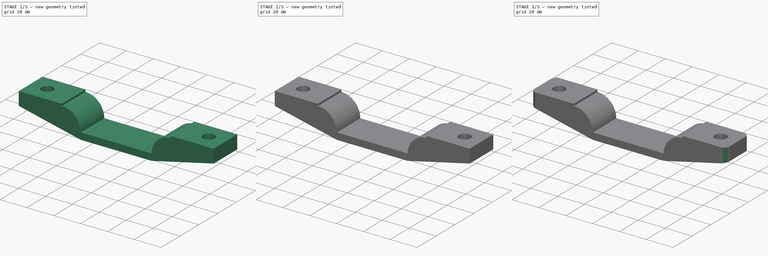
[diagram: build sequence overview — one tinted view per stage of 3, left to right]
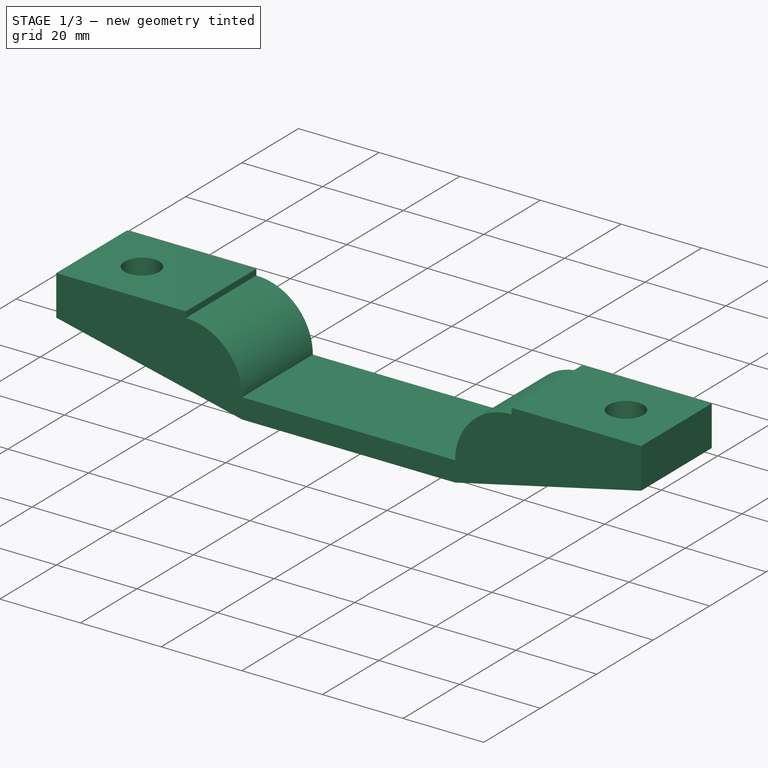
[diagram: stage 1 of 3 — iso view after this stage's code; geometry added in this stage tinted green]
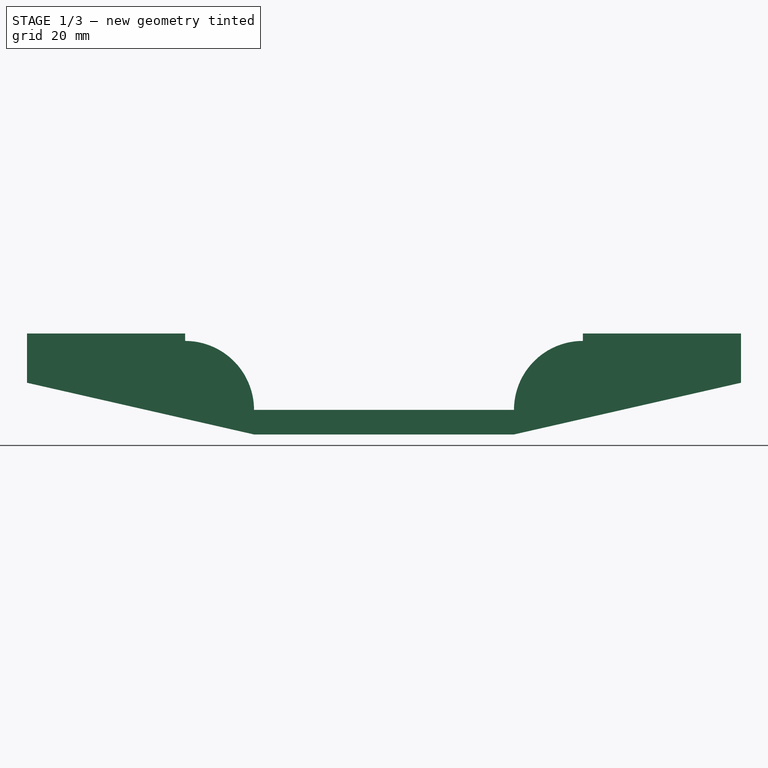
[diagram: stage 1 of 3 — front view after this stage's code; geometry added in this stage tinted green]
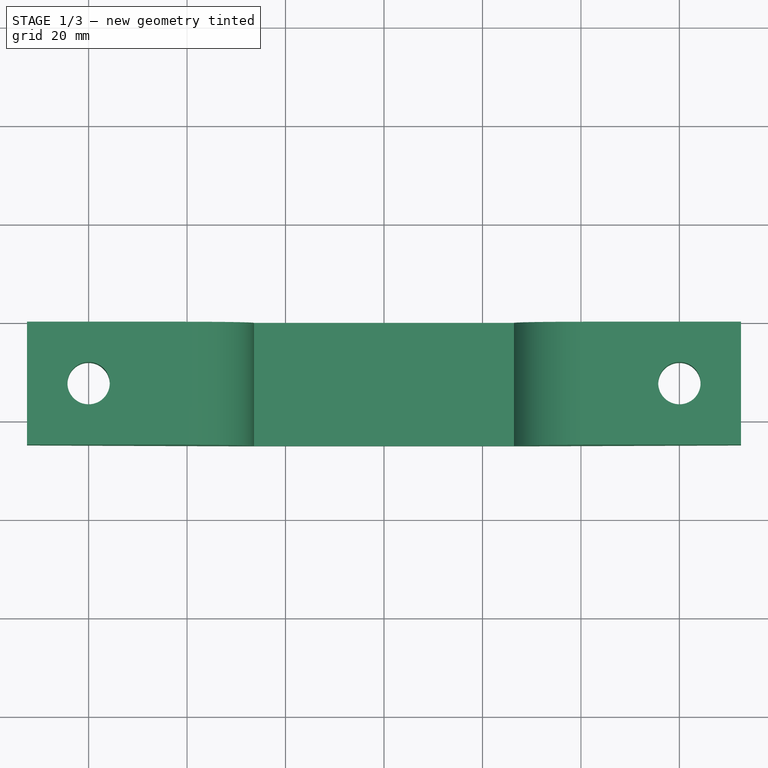
[diagram: stage 1 of 3 — top view after this stage's code; geometry added in this stage tinted green]
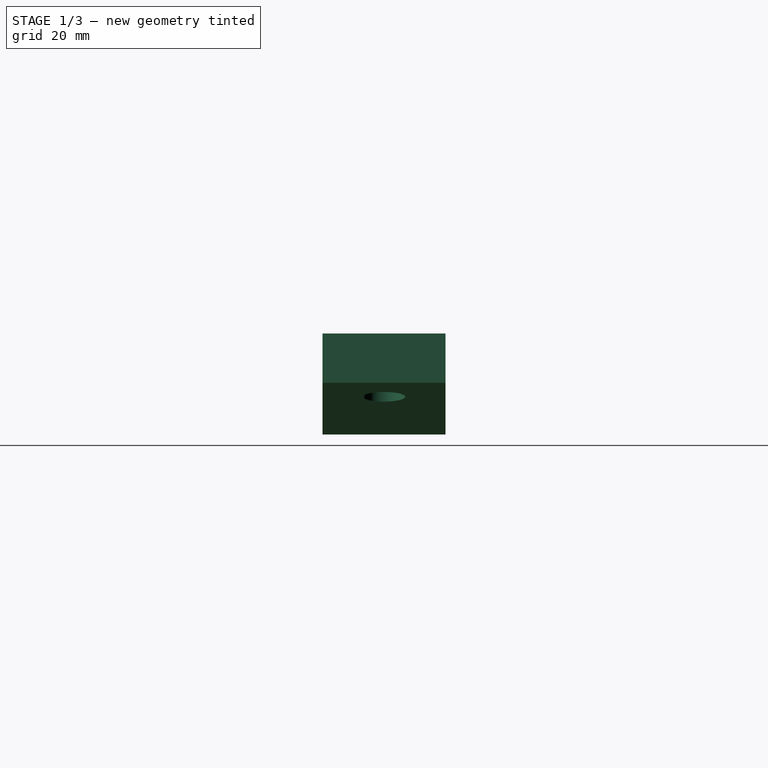
[diagram: stage 1 of 3 — right view after this stage's code; geometry added in this stage tinted green]
FCSTD DOCUMENT  (FreeCAD 1.0R39109 (Git))
Label: surge_motor_mount_bottom
License: All rights reserved
LicenseURL: https://en.wikipedia.org/wiki/All_rights_reserved
objects: Sketcher::SketchObject×3, PartDesign::Pocket×2, PartDesign::Fillet×2, PartDesign::Pad×1, PartDesign::Body×1
note: 22 computed .brp shape members not serialized (recipe doc carries the construction recipe); baked Part::Feature solids carry a one-line shape summary decoded from their .brp

FEATURE [Sketcher::SketchObject] Sketch
  ArcFitTolerance = 1e-06
  AttachmentSupport = -> [XZ_Plane]
  FullyConstrained = true
  MakeInternals = false
  MapMode = 5
  Placement = pos=(0,0,0) rot=(1,0,0;1.5708rad)
  sketch-geometry (30):
    g0: LineSegment [constr] StartX=-80 StartY=20 StartZ=0 EndX=-80 EndY=-20 EndZ=0
    g1: LineSegment [constr] StartX=-80 StartY=-20 StartZ=0 EndX=-40 EndY=-20 EndZ=0
    g2: LineSegment [constr] StartX=-40 StartY=-20 StartZ=0 EndX=-40 EndY=20 EndZ=0
    g3: LineSegment [constr] StartX=-40 StartY=20 StartZ=0 EndX=-80 EndY=20 EndZ=0
    g4: LineSegment [constr] StartX=40 StartY=20 StartZ=0 EndX=40 EndY=-20 EndZ=0
    g5: LineSegment [constr] StartX=40 StartY=-20 StartZ=0 EndX=80 EndY=-20 EndZ=0
    g6: LineSegment [constr] StartX=80 StartY=-20 StartZ=0 EndX=80 EndY=20 EndZ=0
    g7: LineSegment [constr] StartX=80 StartY=20 StartZ=0 EndX=40 EndY=20 EndZ=0
    g8: LineSegment [constr] StartX=-40 StartY=-20 StartZ=0 EndX=0 EndY=0 EndZ=0
    g9: LineSegment [constr] StartX=0 StartY=0 StartZ=0 EndX=40 EndY=-20 EndZ=0
    g10: LineSegment [constr] StartX=-40 StartY=44.5 StartZ=0 EndX=-40 EndY=-35.5 EndZ=0
    g11: LineSegment [constr] StartX=-40 StartY=-35.5 StartZ=0 EndX=40 EndY=-35.5 EndZ=0
    g12: LineSegment [constr] StartX=40 StartY=-35.5 StartZ=0 EndX=40 EndY=44.5 EndZ=0
    g13: LineSegment [constr] StartX=40 StartY=44.5 StartZ=0 EndX=-40 EndY=44.5 EndZ=0
    g14: LineSegment StartX=40.4 StartY=-20.4 StartZ=0 EndX=72.5 EndY=-20.4 EndZ=0
    g15: LineSegment StartX=72.5 StartY=-20.4 StartZ=0 EndX=72.5 EndY=-30.4 EndZ=0
    g16: LineSegment StartX=-72.5 StartY=-30.4 StartZ=0 EndX=-72.5 EndY=-20.4 EndZ=0
    g17: LineSegment StartX=-72.5 StartY=-20.4 StartZ=0 EndX=-40.4 EndY=-20.4 EndZ=0
    g18: ArcOfCircle [constr] CenterX=-40 CenterY=-35.5 CenterZ=0 NormalX=0 NormalY=0 NormalZ=1 AngleXU=0 Radius=14 StartAngle=3e-16 EndAngle=1.5708
    g19: ArcOfCircle [constr] CenterX=-40 CenterY=44.5 CenterZ=0 NormalX=0 NormalY=0 NormalZ=1 AngleXU=0 Radius=14 StartAngle=4.71239 EndAngle=6.28319
    g20: ArcOfCircle [constr] CenterX=40 CenterY=-35.5 CenterZ=0 NormalX=0 NormalY=0 NormalZ=1 AngleXU=0 Radius=14 StartAngle=1.5708 EndAngle=3.14159
    g21: ArcOfCircle [constr] CenterX=40 CenterY=44.5 CenterZ=0 NormalX=0 NormalY=0 NormalZ=1 AngleXU=0 Radius=14 StartAngle=3.14159 EndAngle=4.71239
    g22: ArcOfCircle CenterX=-40.4 CenterY=-35.9 CenterZ=0 NormalX=0 NormalY=0 NormalZ=1 AngleXU=0 Radius=14 StartAngle=2e-16 EndAngle=1.5708
    g23: ArcOfCircle CenterX=40.4 CenterY=-35.9 CenterZ=0 NormalX=0 NormalY=0 NormalZ=1 AngleXU=0 Radius=14 StartAngle=1.5708 EndAngle=3.14159
    g24: LineSegment StartX=-40.4 StartY=-21.9 StartZ=0 EndX=-40.4 EndY=-20.4 EndZ=0
    g25: LineSegment StartX=-26.4 StartY=-35.9 StartZ=0 EndX=26.4 EndY=-35.9 EndZ=0
    g26: LineSegment StartX=40.4 StartY=-21.9 StartZ=0 EndX=40.4 EndY=-20.4 EndZ=0
    g27: LineSegment StartX=-72.5 StartY=-30.4 StartZ=0 EndX=-26.4 EndY=-40.9 EndZ=0
    g28: LineSegment StartX=-26.4 StartY=-40.9 StartZ=0 EndX=26.4 EndY=-40.9 EndZ=0
    g29: LineSegment StartX=26.4 StartY=-40.9 StartZ=0 EndX=72.5 EndY=-30.4 EndZ=0
  constraints (94):
    c: Coincident(g0,g1)
    c: Coincident(g1,g2)
    c: Coincident(g2,g3)
    c: Coincident(g3,g0)
    c: Vertical(g0)
    c: Vertical(g2)
    c: Horizontal(g1)
    c: Horizontal(g3)
    c: Coincident(g4,g5)
    c: Coincident(g5,g6)
    c: Coincident(g6,g7)
    c: Coincident(g7,g4)
    c: Vertical(g4)
    c: Vertical(g6)
    c: Horizontal(g5)
    c: Horizontal(g7)
    c: Equal(g3,g2)
    c: Equal(g2,g4)
    c: Equal(g4,g7)
    c: DistanceY(g0,g0) = 40
    c: DistanceX(g2,g4) = 80
    c: DistanceY(g2,g4) = 0
    c: Coincident(g8,g1)
    c: Coincident(g8,g-1)
    c: Coincident(g9,g8)
    c: Coincident(g9,g4)
    c: Equal(g9,g8)
    c: Coincident(g10,g11)
    c: Coincident(g11,g12)
    c: Coincident(g12,g13)
    c: Coincident(g13,g10)
    c: Vertical(g10)
    c: Vertical(g12)
    c: Horizontal(g11)
    c: Horizontal(g13)
    c: PointOnObject(g2,g10)
    c: PointOnObject(g4,g12)
    c: Equal(g13,g10)
    c: DistanceY(g2,g10) = 24.5
    c: DistanceY(g2) = 20
    c: Horizontal(g14)
    c: Coincident(g14,g15)
    c: Vertical(g15)
    c: Vertical(g16)
    c: Coincident(g16,g17)
    c: Horizontal(g17)
    c: DistanceY(g17,g1) = 0.4
    c: Equal(g16,g15)
    c: DistanceX(g0,g16) = 7.5
    c: DistanceY(g16,g16) = 10
    c: Coincident(g18,g10)
    c: PointOnObject(g18,g10)
    c: PointOnObject(g18,g11)
    c: Diameter(g18) = 28
    c: Coincident(g19,g10)
    c: PointOnObject(g19,g13)
    c: PointOnObject(g19,g10)
    c: Coincident(g20,g11)
    c: PointOnObject(g20,g11)
    c: PointOnObject(g20,g12)
    c: Coincident(g21,g12)
    c: PointOnObject(g21,g13)
    c: PointOnObject(g21,g12)
    c: Equal(g18,g20)
    c: Equal(g20,g21)
    c: Equal(g21,g19)
    c: DistanceX(g17,g1) = 0.4
    c: Coincident(g24,g22)
    c: Coincident(g24,g17)
    c: Vertical(g24)
    c: DistanceY(g22,g18) = 0.4
    c: Coincident(g25,g22)
    c: Coincident(g25,g23)
    c: Horizontal(g25)
    c: DistanceY(g22,g18) = 0.4
    c: Perpendicular(g22,g24)
    c: Perpendicular(g22,g25)
    c: Perpendicular(g23,g25)
    c: Coincident(g26,g23)
    c: Coincident(g26,g14)
    c: Vertical(g26)
    c: Equal(g17,g14)
    c: Equal(g24,g26)
    c: Coincident(g16,g27)
    c: Coincident(g27,g28)
    c: Horizontal(g28)
    c: Coincident(g28,g29)
    c: Coincident(g29,g15)
    c: DistanceX(g27,g22) = 0
    c: DistanceY(g27,g22) = 5
    c: DistanceX(g28,g23) = 0
    c: Equal(g29,g27)
    c: DistanceX(g4,g14) = 0.4
    c: DistanceY(g14,g4) = 0.4
FEATURE [PartDesign::Pad] Pad
  Direction = (0,-1,2e-16)
  Length = 25
  Length2 = 10
  Placement = pos=(0,0,0) rot=(1,0,0;1.5708rad)
  Profile = -> Sketch
  ReferenceAxis = -> Sketch [N_Axis]
  Refine = true
  Suppressed = false
  Type = 0
FEATURE [Sketcher::SketchObject] Sketch001
  ArcFitTolerance = 1e-06
  AttachmentSupport = -> [Pad]
  FullyConstrained = true
  MakeInternals = false
  MapMode = 5
  Placement = pos=(0,-4.5e-15,-20.4) rot=(0,0,1;3.14159rad)
  sketch-geometry (14):
    g0: LineSegment [constr] StartX=-72.5 StartY=0 StartZ=0 EndX=-47.5 EndY=0 EndZ=0
    g1: LineSegment [constr] StartX=-47.5 StartY=0 StartZ=0 EndX=-47.5 EndY=25 EndZ=0
    g2: LineSegment [constr] StartX=-47.5 StartY=25 StartZ=0 EndX=-72.5 EndY=25 EndZ=0
    g3: LineSegment [constr] StartX=-72.5 StartY=25 StartZ=0 EndX=-72.5 EndY=0 EndZ=0
    g4: LineSegment [constr] StartX=72.5 StartY=0 StartZ=0 EndX=72.5 EndY=25 EndZ=0
    g5: LineSegment [constr] StartX=72.5 StartY=25 StartZ=0 EndX=47.5 EndY=25 EndZ=0
    g6: LineSegment [constr] StartX=47.5 StartY=25 StartZ=0 EndX=47.5 EndY=0 EndZ=0
    g7: LineSegment [constr] StartX=47.5 StartY=0 StartZ=0 EndX=72.5 EndY=0 EndZ=0
    g8: LineSegment [constr] StartX=-72.5 StartY=25 StartZ=0 EndX=-47.5 EndY=0 EndZ=0
    g9: LineSegment [constr] StartX=-72.5 StartY=0 StartZ=0 EndX=-47.5 EndY=25 EndZ=0
    g10: LineSegment [constr] StartX=47.5 StartY=25 StartZ=0 EndX=72.5 EndY=0 EndZ=0
    g11: LineSegment [constr] StartX=47.5 StartY=0 StartZ=0 EndX=72.5 EndY=25 EndZ=0
    g12: Circle CenterX=-60 CenterY=12.5 CenterZ=0 NormalX=0 NormalY=0 NormalZ=1 AngleXU=0 Radius=4.3
    g13: Circle CenterX=60 CenterY=12.5 CenterZ=0 NormalX=0 NormalY=0 NormalZ=1 AngleXU=0 Radius=4.3
  constraints (36):
    c: Coincident(g0,g1)
    c: Coincident(g1,g2)
    c: Coincident(g2,g3)
    c: Coincident(g3,g0)
    c: Horizontal(g0)
    c: Horizontal(g2)
    c: Vertical(g1)
    c: Vertical(g3)
    c: Distance(g1,g3) = 25
    c: Distance(g0,g2) = 25
    c: PointOnObject(g0,g-1)
    c: DistanceX(g0) = -47.5
    c: Coincident(g4,g5)
    c: Coincident(g5,g6)
    c: Coincident(g6,g7)
    c: Coincident(g7,g4)
    c: Vertical(g4)
    c: Vertical(g6)
    c: Horizontal(g5)
    c: Horizontal(g7)
    c: PointOnObject(g4,g-1)
    c: Equal(g6,g5)
    c: Equal(g5,g1)
    c: DistanceX(g6) = 47.5
    c: Coincident(g8,g2)
    c: Coincident(g8,g0)
    c: Coincident(g9,g0)
    c: Coincident(g9,g1)
    c: Coincident(g10,g5)
    c: Coincident(g10,g4)
    c: Coincident(g11,g6)
    c: Coincident(g11,g4)
    c: Diameter(g12) = 8.6
    c: Symmetric(g8,g8,g12)
    c: Symmetric(g11,g11,g13)
    c: Equal(g13,g12)
FEATURE [PartDesign::Pocket] Pocket
  BaseFeature = -> Pad
  Direction = (0,0,-1)
  Length = 5
  Length2 = 5
  Placement = pos=(0,0,0) rot=(1,0,0;1.5708rad)
  Profile = -> Sketch001
  ReferenceAxis = -> Sketch001 [N_Axis]
  Refine = true
  Suppressed = false
  Type = 1
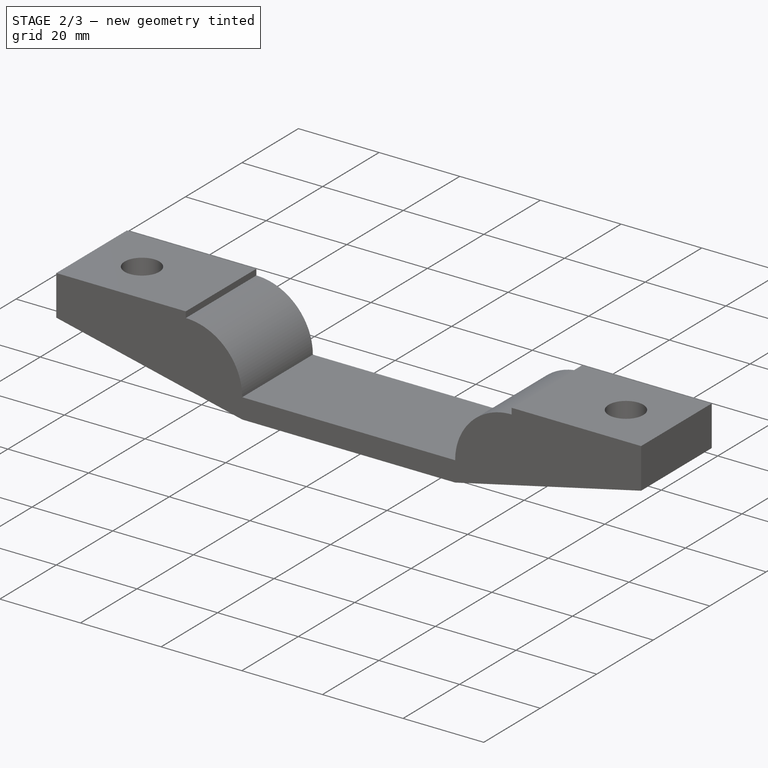
[diagram: stage 2 of 3 — iso view after this stage's code; geometry added in this stage tinted green]
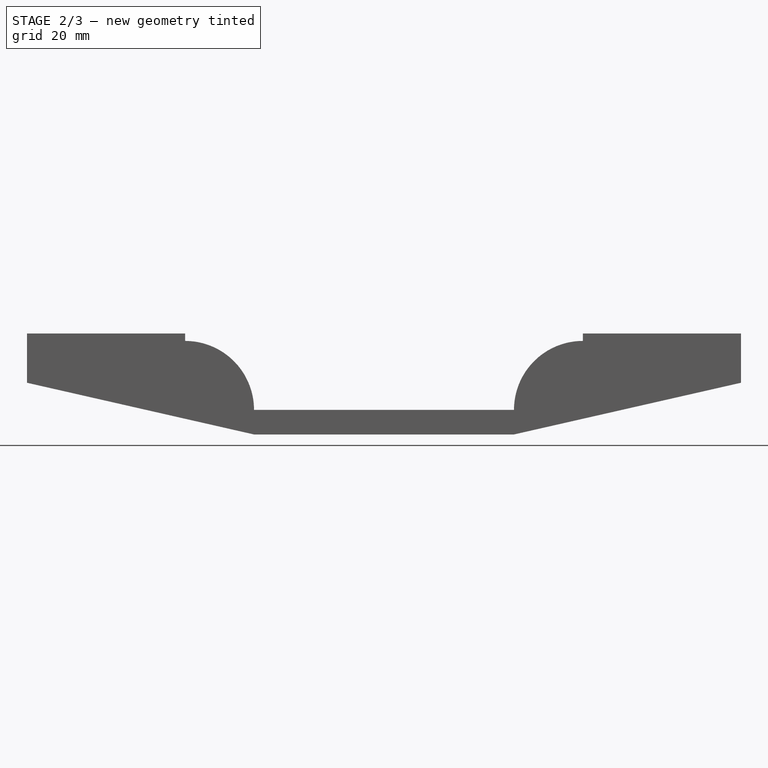
[diagram: stage 2 of 3 — front view after this stage's code; geometry added in this stage tinted green]
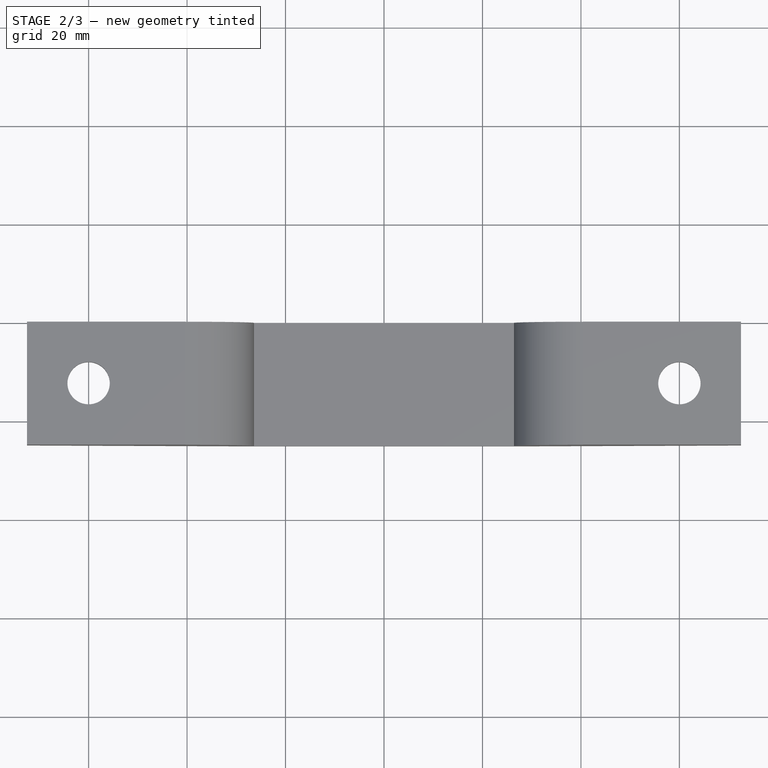
[diagram: stage 2 of 3 — top view after this stage's code; geometry added in this stage tinted green]
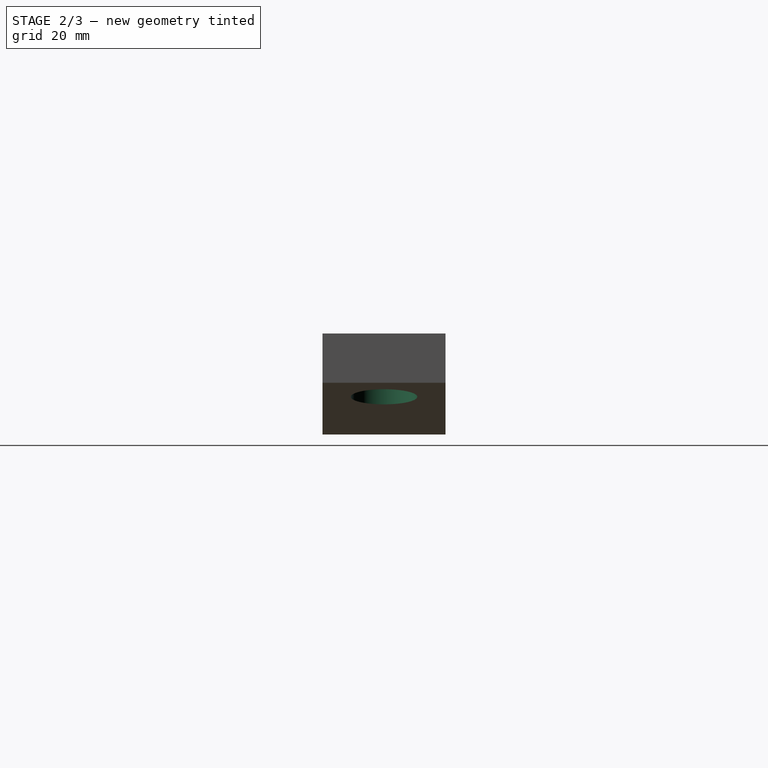
[diagram: stage 2 of 3 — right view after this stage's code; geometry added in this stage tinted green]
FEATURE [Sketcher::SketchObject] Sketch002
  ArcFitTolerance = 1e-06
  AttachmentOffset = pos=(0,0,-5) rot=(0,0,1;0rad)
  AttachmentSupport = -> [Pocket]
  FullyConstrained = true
  MakeInternals = false
  MapMode = 5
  Placement = pos=(0,-4.5e-15,-25.4) rot=(0,0,1;3.14159rad)
  expr: Constraints[11] = Sketch001.Constraints[11]
  expr: Constraints[23] = Sketch001.Constraints[23]
  expr: Constraints[32] = Sketch001.Constraints[32]
  expr: Constraints[8] = Sketch001.Constraints[8]
  expr: Constraints[9] = Sketch001.Constraints[9]
  sketch-geometry (16):
    g0: LineSegment [constr] StartX=-72.5 StartY=0 StartZ=0 EndX=-47.5 EndY=0 EndZ=0
    g1: LineSegment [constr] StartX=-47.5 StartY=0 StartZ=0 EndX=-47.5 EndY=25 EndZ=0
    g2: LineSegment [constr] StartX=-47.5 StartY=25 StartZ=0 EndX=-72.5 EndY=25 EndZ=0
    g3: LineSegment [constr] StartX=-72.5 StartY=25 StartZ=0 EndX=-72.5 EndY=0 EndZ=0
    g4: LineSegment [constr] StartX=72.5 StartY=0 StartZ=0 EndX=72.5 EndY=25 EndZ=0
    g5: LineSegment [constr] StartX=72.5 StartY=25 StartZ=0 EndX=47.5 EndY=25 EndZ=0
    g6: LineSegment [constr] StartX=47.5 StartY=25 StartZ=0 EndX=47.5 EndY=0 EndZ=0
    g7: LineSegment [constr] StartX=47.5 StartY=0 StartZ=0 EndX=72.5 EndY=0 EndZ=0
    g8: LineSegment [constr] StartX=-72.5 StartY=25 StartZ=0 EndX=-47.5 EndY=0 EndZ=0
    g9: LineSegment [constr] StartX=-72.5 StartY=0 StartZ=0 EndX=-47.5 EndY=25 EndZ=0
    g10: LineSegment [constr] StartX=47.5 StartY=25 StartZ=0 EndX=72.5 EndY=0 EndZ=0
    g11: LineSegment [constr] StartX=47.5 StartY=0 StartZ=0 EndX=72.5 EndY=25 EndZ=0
    g12: Circle [constr] CenterX=-60 CenterY=12.5 CenterZ=0 NormalX=0 NormalY=0 NormalZ=1 AngleXU=0 Radius=4.3
    g13: Circle [constr] CenterX=60 CenterY=12.5 CenterZ=0 NormalX=0 NormalY=0 NormalZ=1 AngleXU=0 Radius=4.3
    g14: Circle CenterX=-60 CenterY=12.5 CenterZ=0 NormalX=0 NormalY=0 NormalZ=1 AngleXU=0 Radius=6.75
    g15: Circle CenterX=60 CenterY=12.5 CenterZ=0 NormalX=0 NormalY=0 NormalZ=1 AngleXU=0 Radius=6.75
  constraints (40):
    c: Coincident(g0,g1)
    c: Coincident(g1,g2)
    c: Coincident(g2,g3)
    c: Coincident(g3,g0)
    c: Horizontal(g0)
    c: Horizontal(g2)
    c: Vertical(g1)
    c: Vertical(g3)
    c: Distance(g1,g3) = 25
    c: Distance(g0,g2) = 25
    c: PointOnObject(g0,g-1)
    c: DistanceX(g0) = -47.5
    c: Coincident(g4,g5)
    c: Coincident(g5,g6)
    c: Coincident(g6,g7)
    c: Coincident(g7,g4)
    c: Vertical(g4)
    c: Vertical(g6)
    c: Horizontal(g5)
    c: Horizontal(g7)
    c: PointOnObject(g4,g-1)
    c: Equal(g6,g5)
    c: Equal(g5,g1)
    c: DistanceX(g6) = 47.5
    c: Coincident(g8,g2)
    c: Coincident(g8,g0)
    c: Coincident(g9,g0)
    c: Coincident(g9,g1)
    c: Coincident(g10,g5)
    c: Coincident(g10,g4)
    c: Coincident(g11,g6)
    c: Coincident(g11,g4)
    c: Diameter(g12) = 8.6
    c: Symmetric(g8,g8,g12)
    c: Symmetric(g11,g11,g13)
    c: Equal(g13,g12)
    c: Coincident(g14,g12)
    c: Coincident(g15,g13)
    c: Equal(g14,g15)
    c: Diameter(g14) = 13.5
FEATURE [PartDesign::Pocket] Pocket001
  BaseFeature = -> Pocket
  Direction = (0,0,-1)
  Length = 5
  Length2 = 5
  Placement = pos=(0,0,0) rot=(1,0,0;1.5708rad)
  Profile = -> Sketch002
  ReferenceAxis = -> Sketch002 [N_Axis]
  Refine = true
  Suppressed = false
  Type = 1
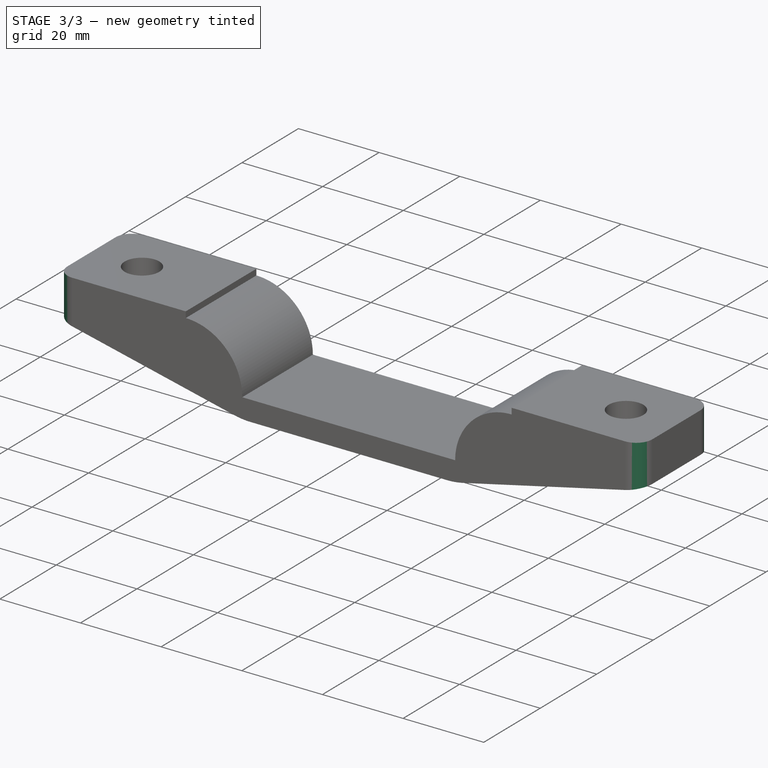
[diagram: stage 3 of 3 — iso view after this stage's code; geometry added in this stage tinted green]
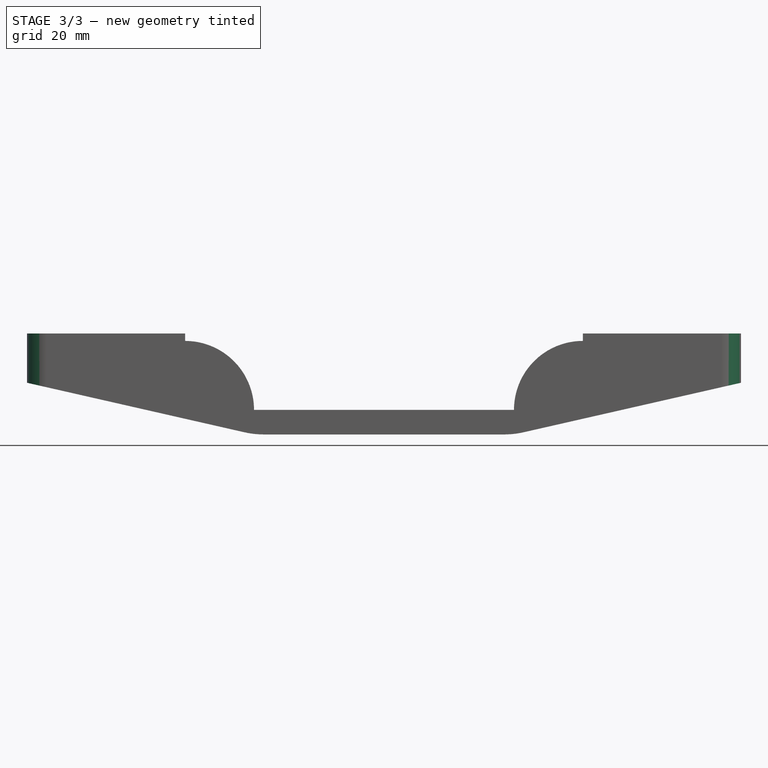
[diagram: stage 3 of 3 — front view after this stage's code; geometry added in this stage tinted green]
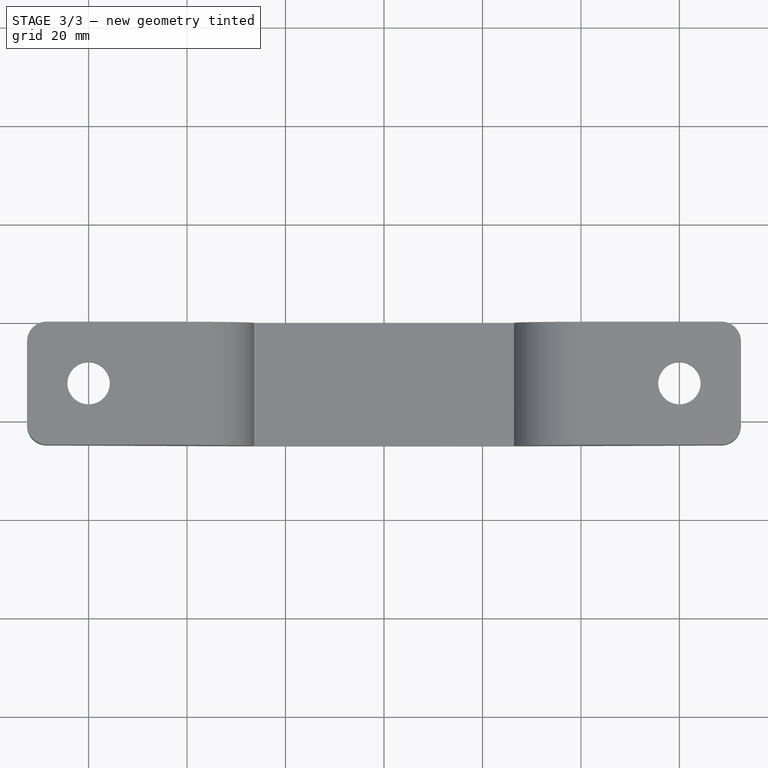
[diagram: stage 3 of 3 — top view after this stage's code; geometry added in this stage tinted green]
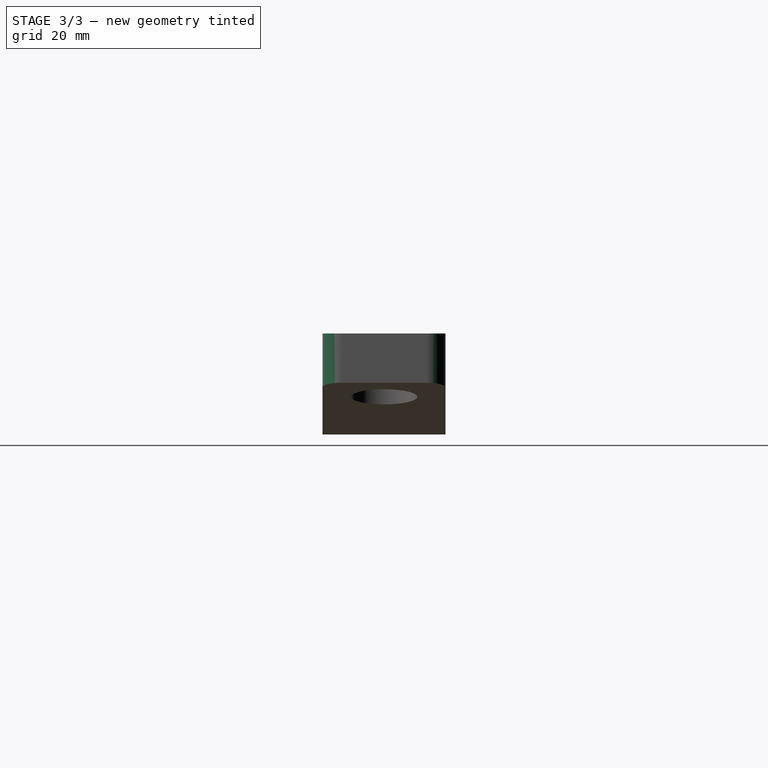
[diagram: stage 3 of 3 — right view after this stage's code; geometry added in this stage tinted green]
FEATURE [PartDesign::Fillet] Fillet
  Base = -> Pocket001 [Edge25,Edge16,Edge21,Edge12]
  BaseFeature = -> Pocket001
  Placement = pos=(0,0,0) rot=(1,0,0;1.5708rad)
  Radius = 4
  Refine = true
  SupportTransform = false
  Suppressed = false
  UseAllEdges = false
FEATURE [PartDesign::Fillet] Fillet001
  Base = -> Fillet [Edge41,Edge38]
  BaseFeature = -> Fillet
  Placement = pos=(0,0,0) rot=(1,0,0;1.5708rad)
  Radius = 18
  Refine = true
  SupportTransform = false
  Suppressed = false
  UseAllEdges = false
FEATURE [PartDesign::Body] Body  label="surge_motor_mount_bottom"
  AllowCompound = false
  Group = -> [Sketch,Pad,Sketch001,Pocket,Sketch002,Pocket001,Fillet,Fillet001]
  Origin = -> Origin
  Tip = -> Fillet001
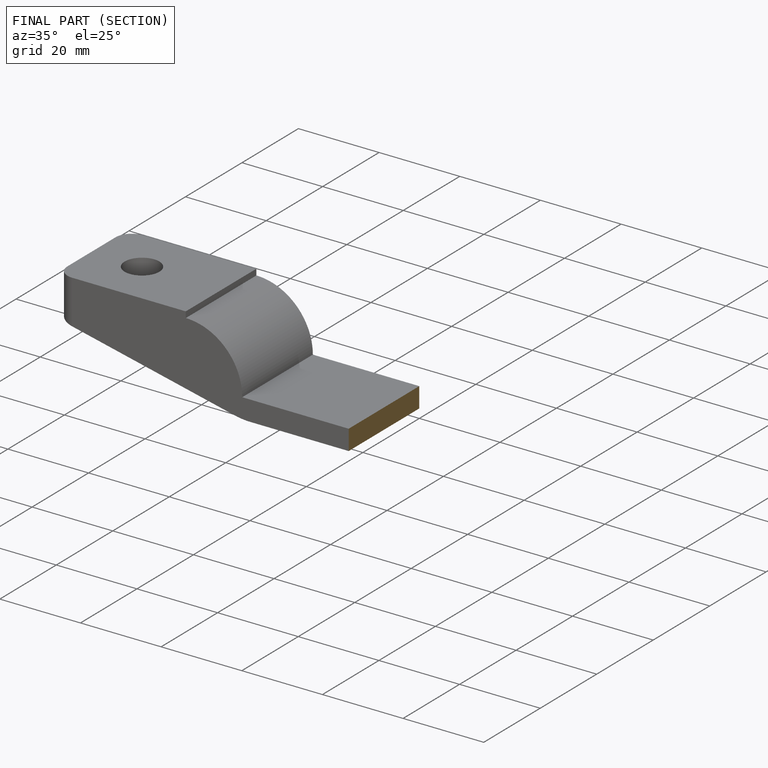
[diagram: finished part — half-section view (interior)]
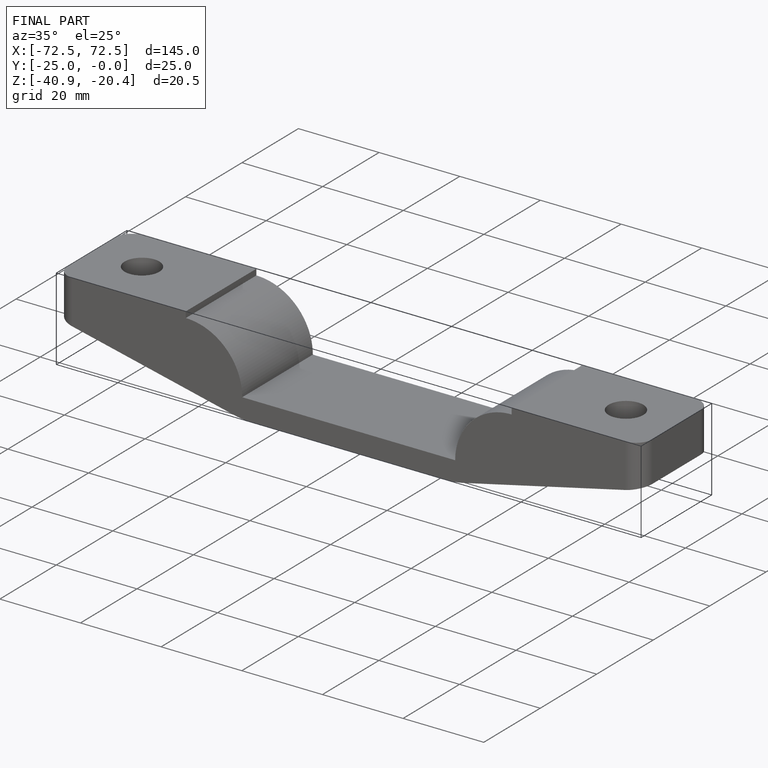
[diagram: finished part — iso view with bounding-box wireframe]
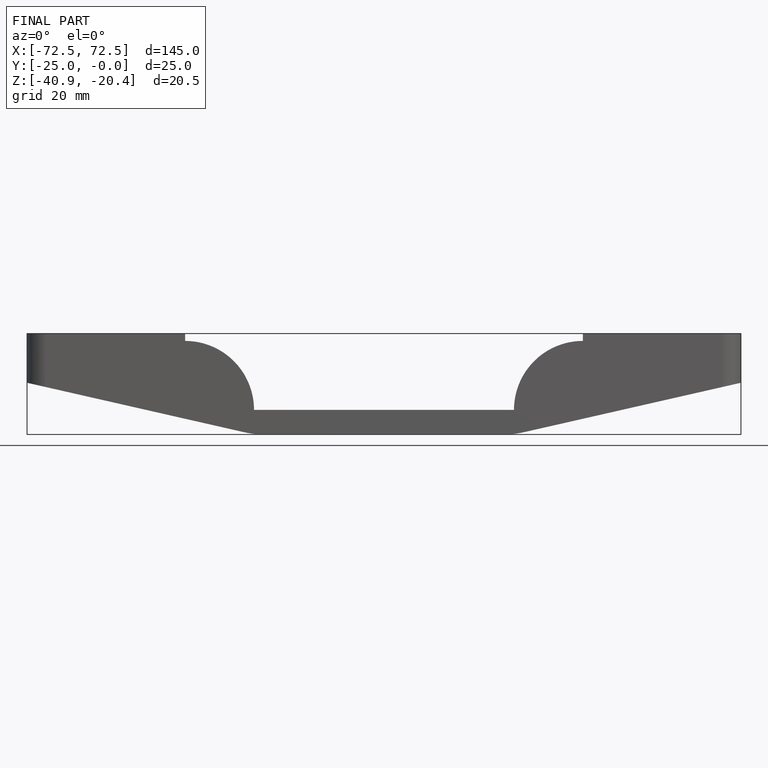
[diagram: finished part — front view with bounding-box wireframe]
